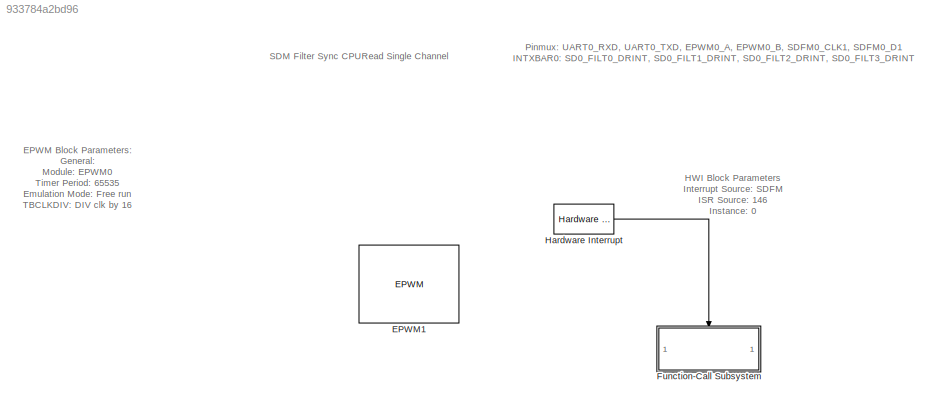
MODEL slx_933784a2bd96
KIND model
CONFIG AbsTol = auto
CONFIG EnableMultiTasking = off
CONFIG FixedStep = auto
CONFIG MaxStep = auto
CONFIG MinStep = auto
CONFIG RelTol = 1e-3
CONFIG SampleTimeConstraint = Unconstrained
CONFIG SolverName = FixedStepAuto
CONFIG StartTime = 0.0
CONFIG StopTime = 10.0
BLOCK [Reference] EPWM1  REF=peripheral_library_blocks_am263px/EPWM
  SourceBlock = peripheral_library_blocks_am263px/EPWM
  SourceType = EPWM_AM263PX
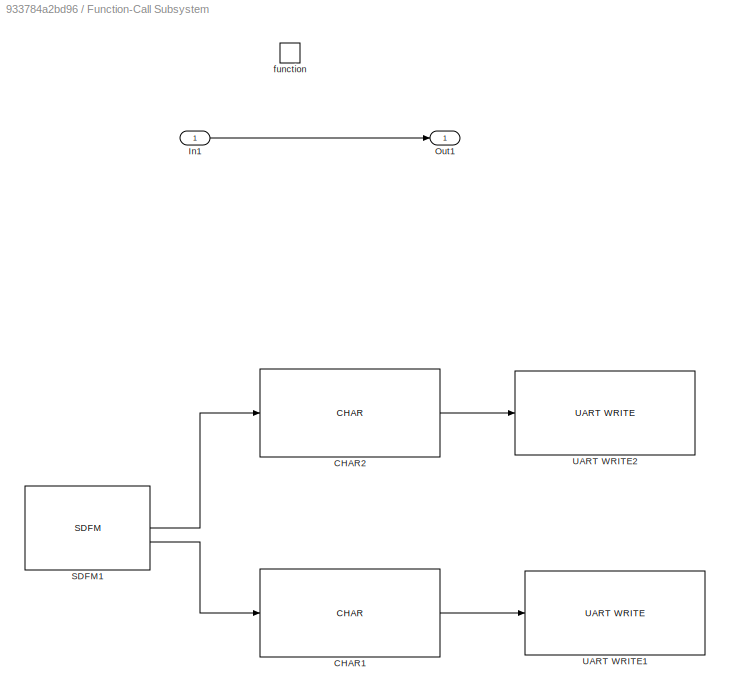
BLOCK [SubSystem] Function-Call Subsystem
  TreatAsAtomicUnit = on
BLOCK [Reference] Function-Call Subsystem/CHAR1  REF=peripheral_library_blocks_am263px/CHAR
  SourceBlock = peripheral_library_blocks_am263px/CHAR
  SourceType = CHAR
BLOCK [Reference] Function-Call Subsystem/CHAR2  REF=peripheral_library_blocks_am263px/CHAR
  SourceBlock = peripheral_library_blocks_am263px/CHAR
  SourceType = CHAR
BLOCK [Inport] Function-Call Subsystem/In1
BLOCK [Outport] Function-Call Subsystem/Out1
BLOCK [Reference] Function-Call Subsystem/SDFM1  REF=peripheral_library_blocks_am263px/SDFM
  SourceBlock = peripheral_library_blocks_am263px/SDFM
  SourceType = SDFM_AM263PX
BLOCK [Reference] Function-Call Subsystem/UART WRITE1  REF=peripheral_library_blocks_am263px/UART WRITE
  SourceBlock = peripheral_library_blocks_am263px/UART WRITE
  SourceType = UART_WRITE_AM263PX
BLOCK [Reference] Function-Call Subsystem/UART WRITE2  REF=peripheral_library_blocks_am263px/UART WRITE
  SourceBlock = peripheral_library_blocks_am263px/UART WRITE
  SourceType = UART_WRITE_AM263PX
BLOCK [TriggerPort] Function-Call Subsystem/function
  StatesWhenEnabling = held
  TriggerType = function-call
  VariantControl = (inherit)
BLOCK [Reference] Hardware Interrupt  REF=HWI_lib/Hardware Interrupt
  SourceBlock = HWI_lib/Hardware Interrupt
  SourceProductName = Embedded Coder Support Package for AM263x - HWI Block
ANNOTATION (root): EPWM Block Parameters: General: Module: EPWM0 Timer Period: 65535 Emulation Mode: Free run TBCLKDIV: DIV clk by 16 HSCLKDIV: Div clk by 1 Counter Mode: Up count Counter Compare: CMPA Value: 32768 CMPB Value: 16384 Action Qualifier: EPWMXA CNTR Zero: Set output pins low EPWMXA CNTR CMPAU: Set output pins high EPWMXB CNTR Zero: Set output pins low EPWMXB when CMPBU: Set output pins high
ANNOTATION (root): Pinmux : UART0_RXD, UART0_TXD, EPWM0_A, EPWM0_B, SDFM0_CLK1, SDFM0_D1 INTXBAR0: SD0_FILT0_DRINT, SD0_FILT1_DRINT, SD0_FILT2_DRINT, SD0_FILT3_DRINT
ANNOTATION (root): SDM Filter Sync CPURead Single Channel
ANNOTATION (root): HWI Block Parameters Interrupt Source : SDFM ISR Source : 146 Instance : 0
LINE Function-Call Subsystem/CHAR1:1 -> Function-Call Subsystem/UART WRITE1:1
LINE Function-Call Subsystem/CHAR2:1 -> Function-Call Subsystem/UART WRITE2:1
LINE Function-Call Subsystem/In1:1 -> Function-Call Subsystem/Out1:1
LINE Function-Call Subsystem/SDFM1:1 -> Function-Call Subsystem/CHAR2:1
LINE Function-Call Subsystem/SDFM1:2 -> Function-Call Subsystem/CHAR1:1
LINE Hardware Interrupt:1 -> Function-Call Subsystem:trigger
